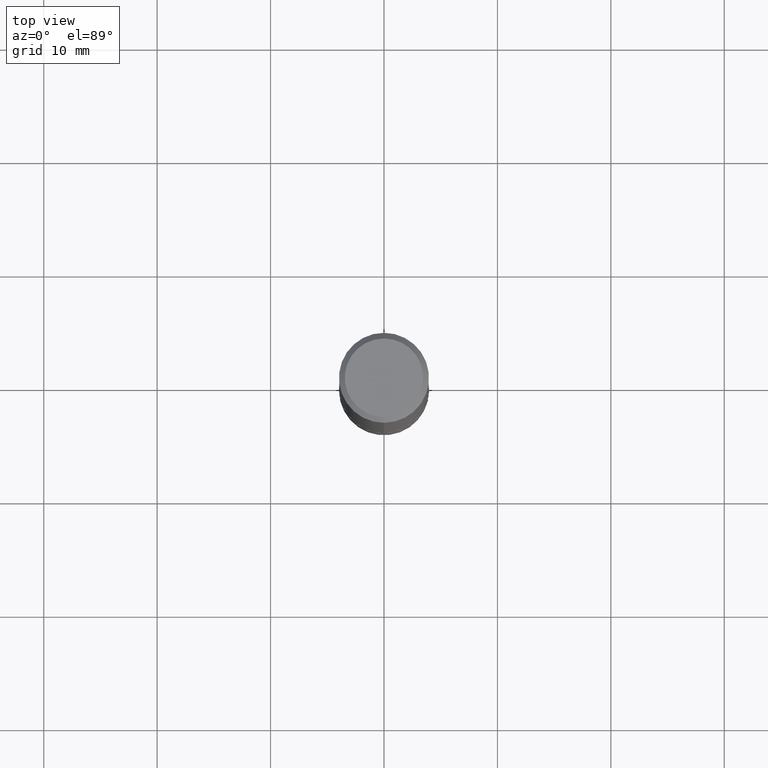
[diagram: clean part render]
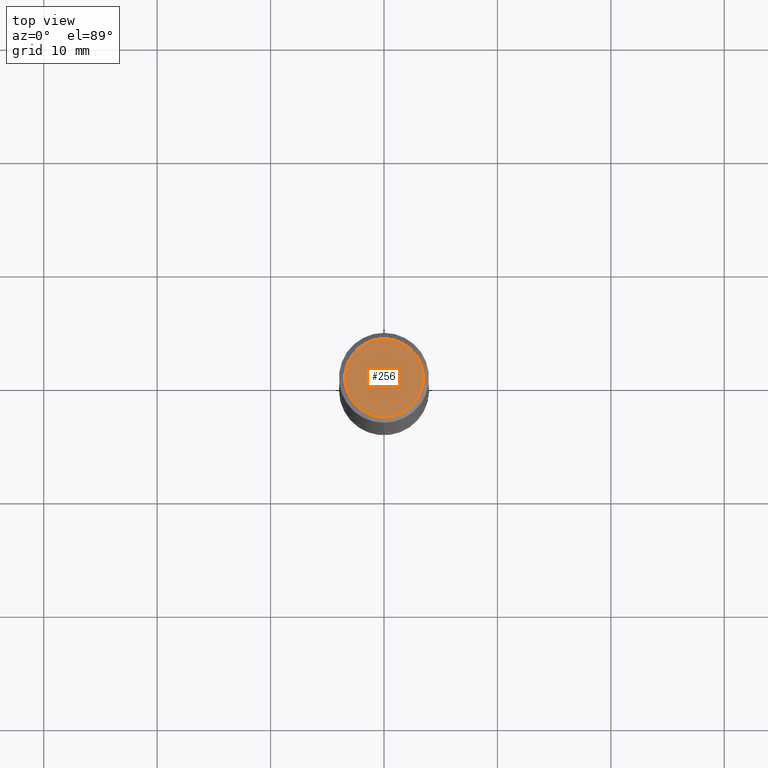
[diagram: same view with one face highlighted and labeled with its STEP entity id]
A machine part, top view. The second image highlights one B-rep face of the part: STEP entity #256.
In plain terms, the highlighted planar face has unit normal (0, -0, -1).
Its self-contained STEP definition (entity closure, byte-faithful):
#27 = DIRECTION ( 'NONE',  ( -6.982962677686266711E-15, -1.000000000000000000, 3.490693873197693060E-15 ) ) ;
#34 = DIRECTION ( 'NONE',  ( -2.446018690506352654E-29, 3.490693873197692271E-15, 1.000000000000000000 ) ) ;
#88 = DIRECTION ( 'NONE',  ( -2.446018690506352654E-29, 3.490693873197692271E-15, 1.000000000000000000 ) ) ;
#90 = CARTESIAN_POINT ( 'NONE',  ( 2.624387123415071162E-48, -3.745242049114306587E-34, -1.072921941929966994E-19 ) ) ;
#92 = DIRECTION ( 'NONE',  ( -6.982962677686266711E-15, -1.000000000000000000, 3.490693873197693060E-15 ) ) ;
#95 = CARTESIAN_POINT ( 'NONE',  ( 2.624387123415071162E-48, -3.745242049114306587E-34, -1.072921941929966994E-19 ) ) ;
#97 = EDGE_CURVE ( 'NONE', #239, #187, #389, .T. ) ;
#106 = CARTESIAN_POINT ( 'NONE',  ( 9.514286648347541549E-16, 0.1362500000000000377, -4.756606863202822775E-16 ) ) ;
#131 = CARTESIAN_POINT ( 'NONE',  ( 1.021258291611616861E-15, 0.1362500000000000377, -4.757143324173787538E-16 ) ) ;
#137 = CARTESIAN_POINT ( 'NONE',  ( -1.003347832174086278E-15, -0.1362500000000000377, 4.754997480289927501E-16 ) ) ;
#187 = VERTEX_POINT ( 'NONE', #137 ) ;
#202 = EDGE_CURVE ( 'NONE', #187, #239, #397, .T. ) ;
#222 = AXIS2_PLACEMENT_3D ( 'NONE', #95, #34, #92 ) ;
#239 = VERTEX_POINT ( 'NONE', #131 ) ;
#256 = ADVANCED_FACE ( 'NONE', ( #364 ), #374, .F. ) ;
#265 = AXIS2_PLACEMENT_3D ( 'NONE', #90, #88, #27 ) ;
#287 = ORIENTED_EDGE ( 'NONE', *, *, #97, .T. ) ;
#304 = DIRECTION ( 'NONE',  ( 2.446018690506352373E-29, -3.490693873197692271E-15, -1.000000000000000000 ) ) ;
#306 = DIRECTION ( 'NONE',  ( 6.982962677686265922E-15, 1.000000000000000000, -3.490693873197692271E-15 ) ) ;
#326 = AXIS2_PLACEMENT_3D ( 'NONE', #106, #304, #306 ) ;
#335 = EDGE_LOOP ( 'NONE', ( #287, #379 ) ) ;
#364 = FACE_OUTER_BOUND ( 'NONE', #335, .T. ) ;
#374 = PLANE ( 'NONE',  #326 ) ;
#379 = ORIENTED_EDGE ( 'NONE', *, *, #202, .T. ) ;
#389 = CIRCLE ( 'NONE', #265, 0.1362500000000000377 ) ;
#397 = CIRCLE ( 'NONE', #222, 0.1362500000000000377 ) ;